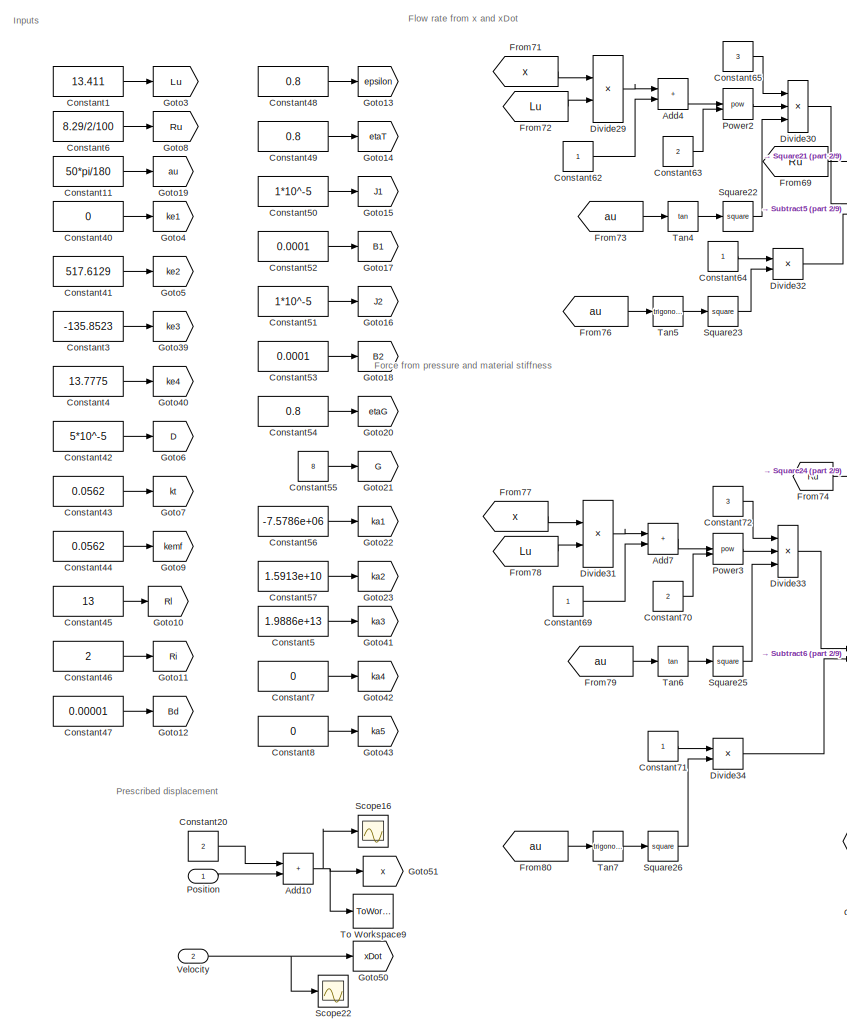
[diagram: root canvas - part 1/9, top left region]
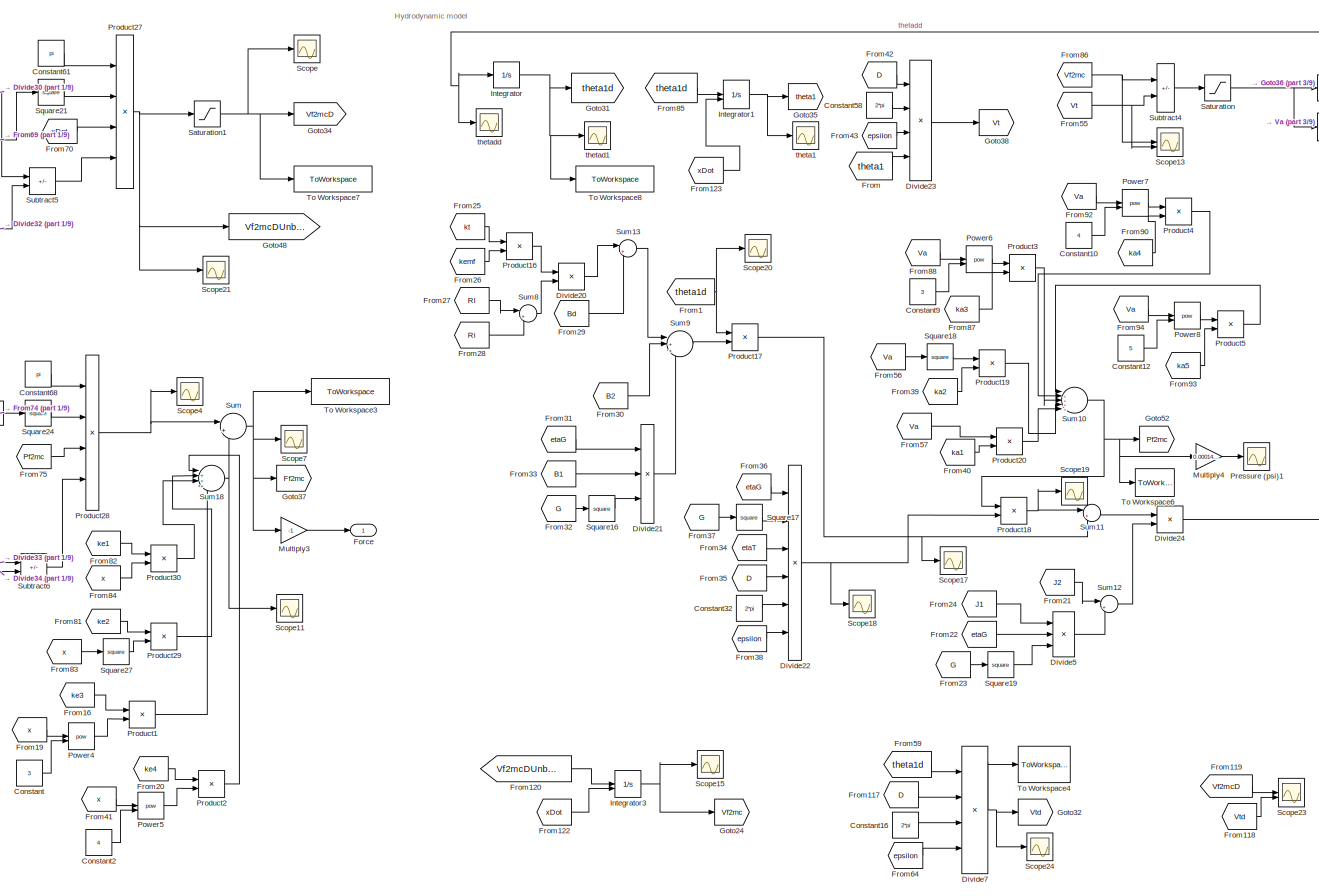
[diagram: root canvas - part 2/9, top center region]
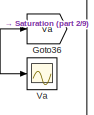
[diagram: root canvas - part 3/9, top right region]
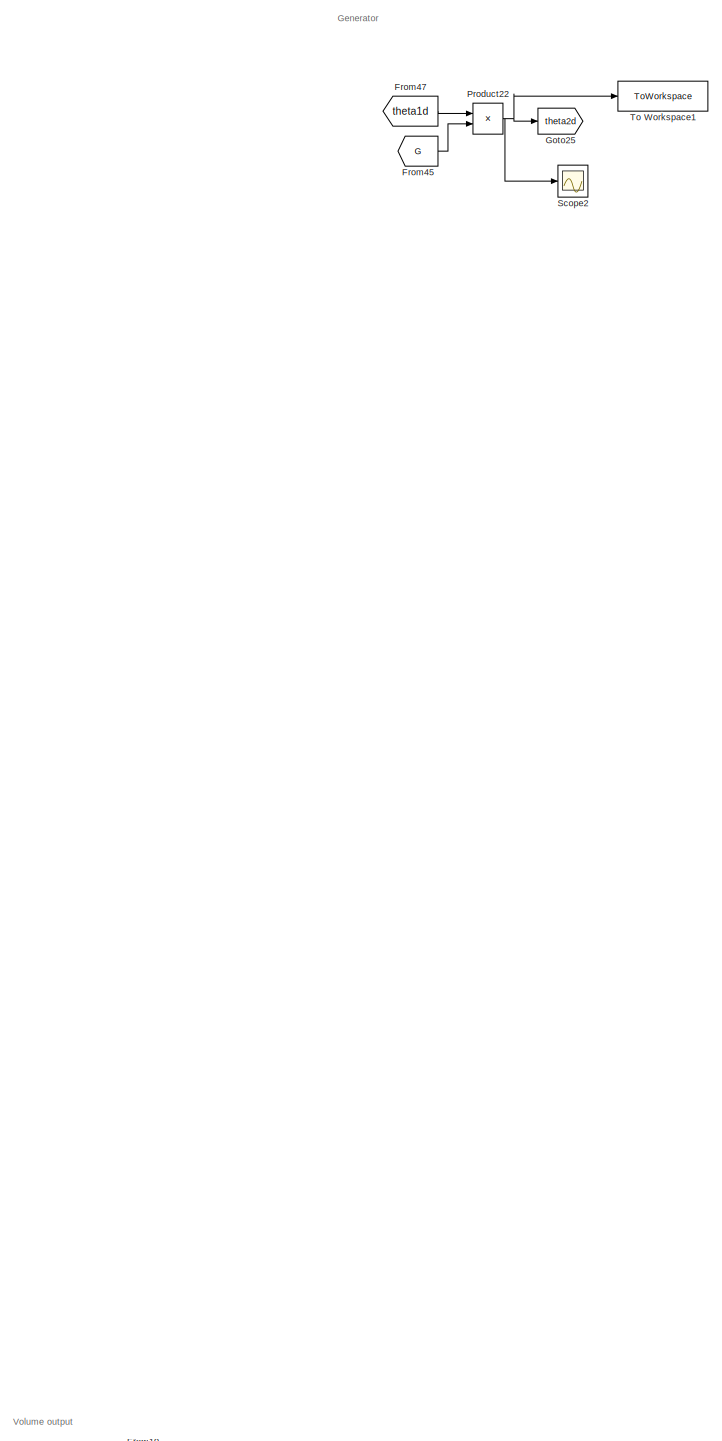
[diagram: root canvas - part 4/9, middle left region]
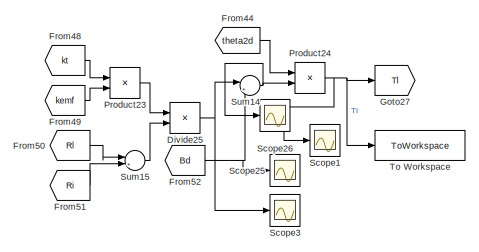
[diagram: root canvas - part 5/9, central region]
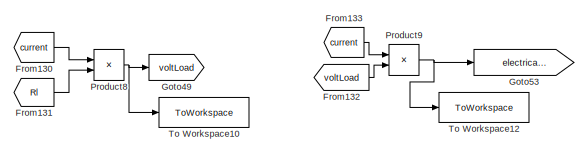
[diagram: root canvas - part 6/9, middle right region]
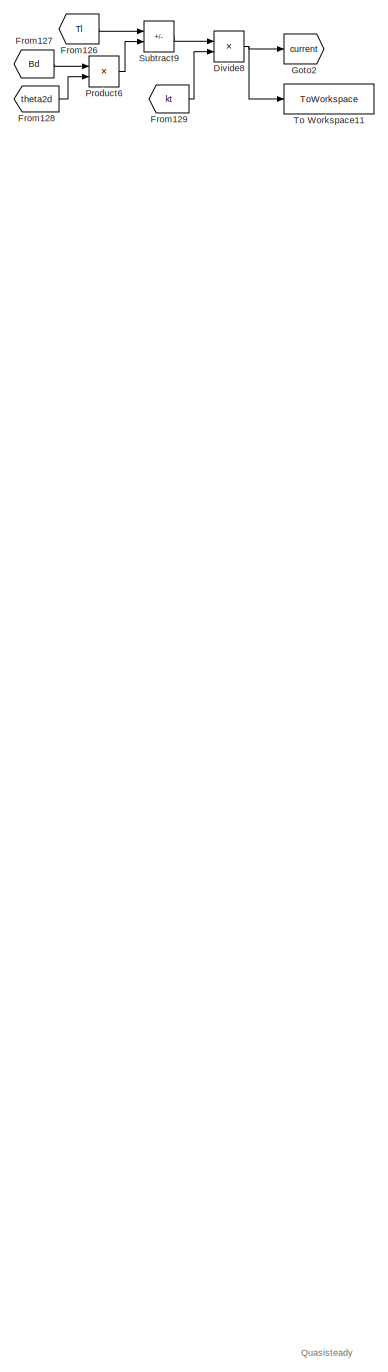
[diagram: root canvas - part 7/9, central region]
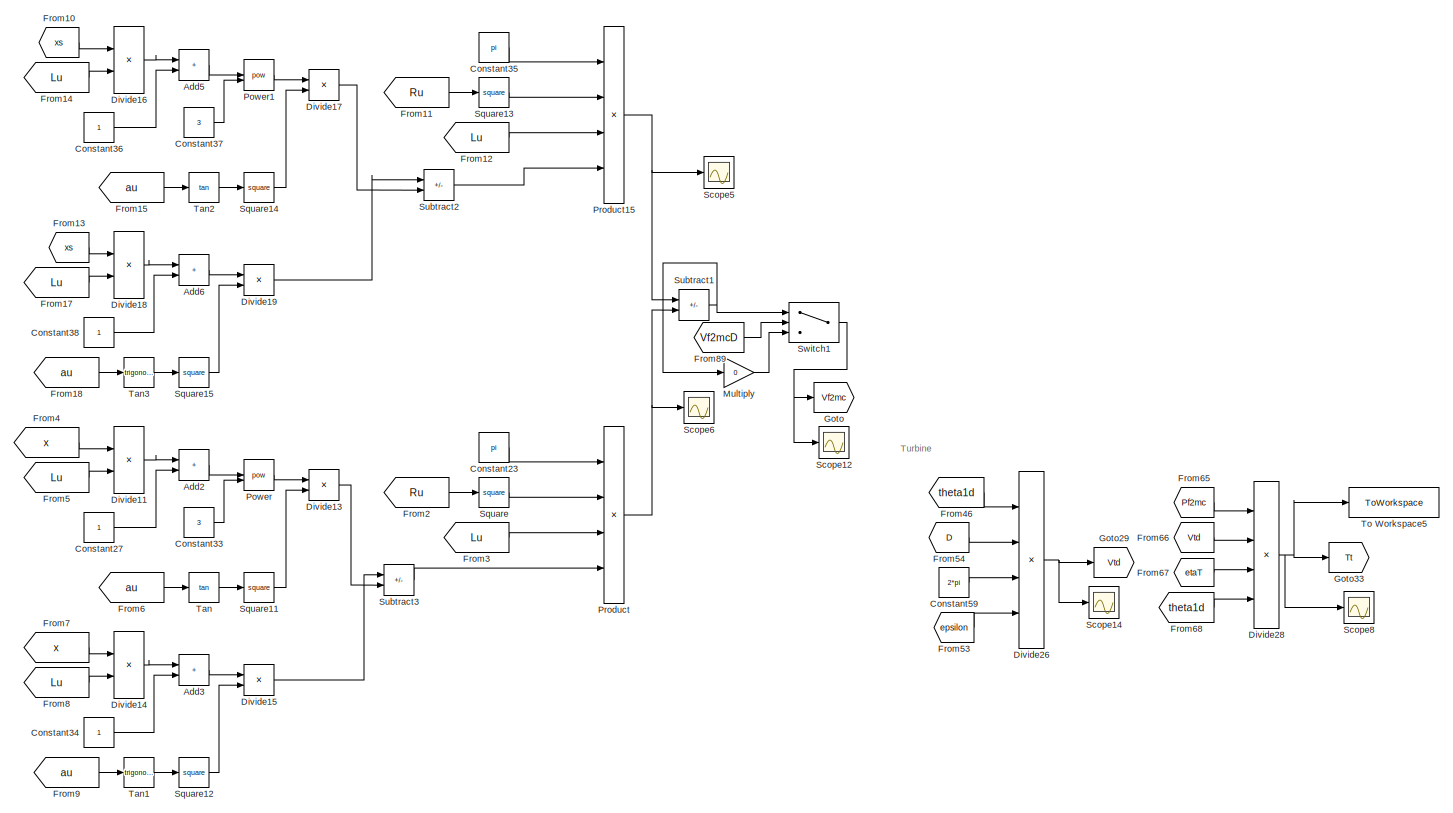
[diagram: root canvas - part 8/9, bottom left region]
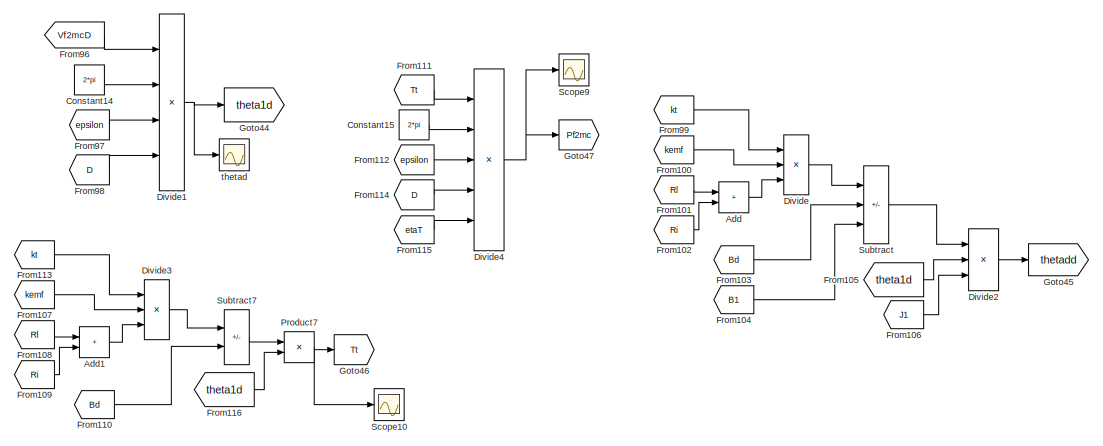
[diagram: root canvas - part 9/9, bottom right region]
MODEL slx_3e424153fed4
KIND model
CONFIG AbsTol = auto
CONFIG EnableMultiTasking = off
CONFIG FixedStep = 0.01
CONFIG MaxStep = auto
CONFIG MinStep = auto
CONFIG RelTol = 1e-3
CONFIG SampleTimeConstraint = Unconstrained
CONFIG SolverName = ode1be
CONFIG StartTime = 0.0
CONFIG StopTime = 300
BLOCK [Sum] Add
  Commented = on
  IconShape = rectangular
BLOCK [Sum] Add1
  Commented = on
  IconShape = rectangular
BLOCK [Sum] Add10
  IconShape = rectangular
BLOCK [Sum] Add2
  Commented = on
  IconShape = rectangular
BLOCK [Sum] Add3
  Commented = on
  IconShape = rectangular
BLOCK [Sum] Add4
  IconShape = rectangular
BLOCK [Sum] Add5
  Commented = on
  IconShape = rectangular
BLOCK [Sum] Add6
  Commented = on
  IconShape = rectangular
BLOCK [Sum] Add7
  IconShape = rectangular
BLOCK [Constant] Constant
  Value = 3
BLOCK [Constant] Constant1
  Value = 13.411
BLOCK [Constant] Constant10
  Value = 4
BLOCK [Constant] Constant11
  Value = 50*pi/180
BLOCK [Constant] Constant12
  Value = 5
BLOCK [Constant] Constant14
  Commented = on
  Value = 2*pi
BLOCK [Constant] Constant15
  Commented = on
  Value = 2*pi
BLOCK [Constant] Constant16
  Value = 2*pi
BLOCK [Constant] Constant2
  Value = 4
BLOCK [Constant] Constant20
  Value = 2
BLOCK [Constant] Constant23
  Commented = on
  Value = pi
BLOCK [Constant] Constant27
  Commented = on
BLOCK [Constant] Constant3
  Value = -135.8523
BLOCK [Constant] Constant32
  Value = 2*pi
BLOCK [Constant] Constant33
  Commented = on
  Value = 3
BLOCK [Constant] Constant34
  Commented = on
BLOCK [Constant] Constant35
  Commented = on
  Value = pi
BLOCK [Constant] Constant36
  Commented = on
BLOCK [Constant] Constant37
  Commented = on
  Value = 3
BLOCK [Constant] Constant38
  Commented = on
BLOCK [Constant] Constant4
  Value = 13.7775
BLOCK [Constant] Constant40
  Value = 0
BLOCK [Constant] Constant41
  Value = 517.6129
BLOCK [Constant] Constant42
  Value = 5*10^-5
BLOCK [Constant] Constant43
  Value = 0.0562
BLOCK [Constant] Constant44
  Value = 0.0562
BLOCK [Constant] Constant45
  Value = 13
BLOCK [Constant] Constant46
  Value = 2
BLOCK [Constant] Constant47
  Value = 0.00001
BLOCK [Constant] Constant48
  Value = 0.8
BLOCK [Constant] Constant49
  Value = 0.8
BLOCK [Constant] Constant5
  Value = 1.9886e+13
BLOCK [Constant] Constant50
  Value = 1*10^-5
BLOCK [Constant] Constant51
  Value = 1*10^-5
BLOCK [Constant] Constant52
  Value = 0.0001
BLOCK [Constant] Constant53
  Value = 0.0001
BLOCK [Constant] Constant54
  Value = 0.8
BLOCK [Constant] Constant55
  Value = 8
BLOCK [Constant] Constant56
  Value = -7.5786e+06
BLOCK [Constant] Constant57
  Value = 1.5913e+10
BLOCK [Constant] Constant58
  Value = 2*pi
BLOCK [Constant] Constant59
  Commented = on
  Value = 2*pi
BLOCK [Constant] Constant6
  Value = 8.29/2/100
BLOCK [Constant] Constant61
  Value = pi
BLOCK [Constant] Constant62
BLOCK [Constant] Constant63
  Value = 2
BLOCK [Constant] Constant64
BLOCK [Constant] Constant65
  Value = 3
BLOCK [Constant] Constant68
  Value = pi
BLOCK [Constant] Constant69
BLOCK [Constant] Constant7
  Value = 0
BLOCK [Constant] Constant70
  Value = 2
BLOCK [Constant] Constant71
BLOCK [Constant] Constant72
  Value = 3
BLOCK [Constant] Constant8
  Value = 0
BLOCK [Constant] Constant9
  Value = 3
BLOCK [Product] Divide
  Commented = on
  Inputs = **/
BLOCK [Product] Divide1
  Commented = on
  Inputs = ***/
BLOCK [Product] Divide11
  Commented = on
  Inputs = */
BLOCK [Product] Divide13
  Commented = on
  Inputs = */
BLOCK [Product] Divide14
  Commented = on
  Inputs = */
BLOCK [Product] Divide15
  Commented = on
  Inputs = */
BLOCK [Product] Divide16
  Commented = on
  Inputs = */
BLOCK [Product] Divide17
  Commented = on
  Inputs = */
BLOCK [Product] Divide18
  Commented = on
  Inputs = */
BLOCK [Product] Divide19
  Commented = on
  Inputs = */
BLOCK [Product] Divide2
  Commented = on
  Inputs = *//
BLOCK [Product] Divide20
  Inputs = */
BLOCK [Product] Divide21
  Inputs = **/
BLOCK [Product] Divide22
  Inputs = */**//
BLOCK [Product] Divide23
  Inputs = *//*
BLOCK [Product] Divide24
  Inputs = */
BLOCK [Product] Divide25
  Inputs = */
BLOCK [Product] Divide26
  Commented = on
  Inputs = **//
BLOCK [Product] Divide28
  Commented = on
  Inputs = ***/
BLOCK [Product] Divide29
  Inputs = */
BLOCK [Product] Divide3
  Commented = on
  Inputs = **/
BLOCK [Product] Divide30
  Inputs = **/
BLOCK [Product] Divide31
  Inputs = */
BLOCK [Product] Divide32
  Inputs = */
BLOCK [Product] Divide33
  Inputs = **/
BLOCK [Product] Divide34
  Inputs = */
BLOCK [Product] Divide4
  Commented = on
  Inputs = ***//
BLOCK [Product] Divide5
  Inputs = **/
BLOCK [Product] Divide7
  Inputs = **//
BLOCK [Product] Divide8
  Inputs = */
BLOCK [Outport] Force
BLOCK [From] From
  GotoTag = theta1
BLOCK [From] From1
  GotoTag = theta1d
BLOCK [From] From10
  Commented = on
  GotoTag = xs
BLOCK [From] From100
  Commented = on
  GotoTag = kemf
BLOCK [From] From101
  Commented = on
  GotoTag = Rl
BLOCK [From] From102
  Commented = on
  GotoTag = Ri
BLOCK [From] From103
  Commented = on
  GotoTag = Bd
BLOCK [From] From104
  Commented = on
  GotoTag = B1
BLOCK [From] From105
  Commented = on
  GotoTag = theta1d
BLOCK [From] From106
  Commented = on
  GotoTag = J1
BLOCK [From] From107
  Commented = on
  GotoTag = kemf
BLOCK [From] From108
  Commented = on
  GotoTag = Rl
BLOCK [From] From109
  Commented = on
  GotoTag = Ri
BLOCK [From] From11
  Commented = on
  GotoTag = Ru
BLOCK [From] From110
  Commented = on
  GotoTag = Bd
BLOCK [From] From111
  Commented = on
  GotoTag = Tt
BLOCK [From] From112
  Commented = on
  GotoTag = epsilon
BLOCK [From] From113
  Commented = on
  GotoTag = kt
BLOCK [From] From114
  Commented = on
  GotoTag = D
BLOCK [From] From115
  Commented = on
  GotoTag = etaT
BLOCK [From] From116
  Commented = on
  GotoTag = theta1d
BLOCK [From] From117
  GotoTag = D
BLOCK [From] From118
  GotoTag = Vtd
BLOCK [From] From119
  GotoTag = Vf2mcD
BLOCK [From] From12
  Commented = on
  GotoTag = Lu
BLOCK [From] From120
  GotoTag = Vf2mcDUnbound
BLOCK [From] From122
  GotoTag = xDot
BLOCK [From] From123
  GotoTag = xDot
BLOCK [From] From126
  GotoTag = Tl
BLOCK [From] From127
  GotoTag = Bd
BLOCK [From] From128
  GotoTag = theta2d
BLOCK [From] From129
  GotoTag = kt
BLOCK [From] From13
  Commented = on
  GotoTag = xs
BLOCK [From] From130
  GotoTag = current
BLOCK [From] From131
  GotoTag = Rl
BLOCK [From] From132
  GotoTag = voltLoad
BLOCK [From] From133
  GotoTag = current
BLOCK [From] From14
  Commented = on
  GotoTag = Lu
BLOCK [From] From15
  Commented = on
  GotoTag = au
BLOCK [From] From16
  GotoTag = ke3
BLOCK [From] From17
  Commented = on
  GotoTag = Lu
BLOCK [From] From18
  Commented = on
  GotoTag = au
BLOCK [From] From19
  GotoTag = x
BLOCK [From] From2
  Commented = on
  GotoTag = Ru
BLOCK [From] From20
  GotoTag = ke4
BLOCK [From] From21
  GotoTag = J2
BLOCK [From] From22
  GotoTag = etaG
BLOCK [From] From23
  GotoTag = G
BLOCK [From] From24
  GotoTag = J1
BLOCK [From] From25
  GotoTag = kt
BLOCK [From] From26
  GotoTag = kemf
BLOCK [From] From27
  GotoTag = Rl
BLOCK [From] From28
  GotoTag = Ri
BLOCK [From] From29
  GotoTag = Bd
BLOCK [From] From3
  Commented = on
  GotoTag = Lu
BLOCK [From] From30
  GotoTag = B2
BLOCK [From] From31
  GotoTag = etaG
BLOCK [From] From32
  GotoTag = G
BLOCK [From] From33
  GotoTag = B1
BLOCK [From] From34
  GotoTag = etaT
BLOCK [From] From35
  GotoTag = D
BLOCK [From] From36
  GotoTag = etaG
BLOCK [From] From37
  GotoTag = G
BLOCK [From] From38
  GotoTag = epsilon
BLOCK [From] From39
  GotoTag = ka2
BLOCK [From] From4
  Commented = on
  GotoTag = x
BLOCK [From] From40
  GotoTag = ka1
BLOCK [From] From41
  GotoTag = x
BLOCK [From] From42
  GotoTag = D
BLOCK [From] From43
  GotoTag = epsilon
BLOCK [From] From44
  GotoTag = theta2d
BLOCK [From] From45
  GotoTag = G
BLOCK [From] From46
  Commented = on
  GotoTag = theta1d
BLOCK [From] From47
  GotoTag = theta1d
BLOCK [From] From48
  GotoTag = kt
BLOCK [From] From49
  GotoTag = kemf
BLOCK [From] From5
  Commented = on
  GotoTag = Lu
BLOCK [From] From50
  GotoTag = Rl
BLOCK [From] From51
  GotoTag = Ri
BLOCK [From] From52
  GotoTag = Bd
BLOCK [From] From53
  Commented = on
  GotoTag = epsilon
BLOCK [From] From54
  Commented = on
  GotoTag = D
BLOCK [From] From55
  GotoTag = Vt
BLOCK [From] From56
  GotoTag = Va
BLOCK [From] From57
  GotoTag = Va
BLOCK [From] From59
  GotoTag = theta1d
BLOCK [From] From6
  Commented = on
  GotoTag = au
BLOCK [From] From64
  GotoTag = epsilon
BLOCK [From] From65
  Commented = on
  GotoTag = Pf2mc
BLOCK [From] From66
  Commented = on
  GotoTag = Vtd
BLOCK [From] From67
  Commented = on
  GotoTag = etaT
BLOCK [From] From68
  Commented = on
  GotoTag = theta1d
BLOCK [From] From69
  GotoTag = Ru
BLOCK [From] From7
  Commented = on
  GotoTag = x
BLOCK [From] From70
  GotoTag = xDot
BLOCK [From] From71
  GotoTag = x
BLOCK [From] From72
  GotoTag = Lu
BLOCK [From] From73
  GotoTag = au
BLOCK [From] From74
  GotoTag = Ru
BLOCK [From] From75
  GotoTag = Pf2mc
BLOCK [From] From76
  GotoTag = au
BLOCK [From] From77
  GotoTag = x
BLOCK [From] From78
  GotoTag = Lu
BLOCK [From] From79
  GotoTag = au
BLOCK [From] From8
  Commented = on
  GotoTag = Lu
BLOCK [From] From80
  GotoTag = au
BLOCK [From] From81
  GotoTag = ke2
BLOCK [From] From82
  GotoTag = ke1
BLOCK [From] From83
  GotoTag = x
BLOCK [From] From84
  GotoTag = x
BLOCK [From] From85
  GotoTag = theta1d
BLOCK [From] From86
  GotoTag = Vf2mc
BLOCK [From] From87
  GotoTag = ka3
BLOCK [From] From88
  GotoTag = Va
BLOCK [From] From89
  Commented = on
  GotoTag = Vf2mcD
BLOCK [From] From9
  Commented = on
  GotoTag = au
BLOCK [From] From90
  GotoTag = ka4
BLOCK [From] From92
  GotoTag = Va
BLOCK [From] From93
  GotoTag = ka5
BLOCK [From] From94
  GotoTag = Va
BLOCK [From] From96
  Commented = on
  GotoTag = Vf2mcD
BLOCK [From] From97
  Commented = on
  GotoTag = epsilon
BLOCK [From] From98
  Commented = on
  GotoTag = D
BLOCK [From] From99
  Commented = on
  GotoTag = kt
BLOCK [Goto] Goto
  Commented = on
  GotoTag = Vf2mc
BLOCK [Goto] Goto10
  GotoTag = Rl
BLOCK [Goto] Goto11
  GotoTag = Ri
BLOCK [Goto] Goto12
  GotoTag = Bd
BLOCK [Goto] Goto13
  GotoTag = epsilon
BLOCK [Goto] Goto14
  GotoTag = etaT
BLOCK [Goto] Goto15
  GotoTag = J1
BLOCK [Goto] Goto16
  GotoTag = J2
BLOCK [Goto] Goto17
  GotoTag = B1
BLOCK [Goto] Goto18
  GotoTag = B2
BLOCK [Goto] Goto19
  GotoTag = au
BLOCK [Goto] Goto2
  GotoTag = current
  NameLocation = left
BLOCK [Goto] Goto20
  GotoTag = etaG
BLOCK [Goto] Goto21
  GotoTag = G
BLOCK [Goto] Goto22
  GotoTag = ka1
BLOCK [Goto] Goto23
  GotoTag = ka2
BLOCK [Goto] Goto24
  GotoTag = Vf2mc
BLOCK [Goto] Goto25
  GotoTag = theta2d
BLOCK [Goto] Goto27
  GotoTag = Tl
BLOCK [Goto] Goto29
  Commented = on
  GotoTag = Vtd
BLOCK [Goto] Goto3
  GotoTag = Lu
BLOCK [Goto] Goto31
  GotoTag = theta1d
BLOCK [Goto] Goto32
  GotoTag = Vtd
BLOCK [Goto] Goto33
  Commented = on
  GotoTag = Tt
BLOCK [Goto] Goto34
  GotoTag = Vf2mcD
BLOCK [Goto] Goto35
  GotoTag = theta1
BLOCK [Goto] Goto36
  GotoTag = Va
BLOCK [Goto] Goto37
  GotoTag = Ff2mc
BLOCK [Goto] Goto38
  GotoTag = Vt
BLOCK [Goto] Goto39
  GotoTag = ke3
BLOCK [Goto] Goto4
  GotoTag = ke1
BLOCK [Goto] Goto40
  GotoTag = ke4
BLOCK [Goto] Goto41
  GotoTag = ka3
BLOCK [Goto] Goto42
  GotoTag = ka4
BLOCK [Goto] Goto43
  GotoTag = ka5
BLOCK [Goto] Goto44
  Commented = on
  GotoTag = theta1d
BLOCK [Goto] Goto45
  Commented = on
  GotoTag = thetadd
BLOCK [Goto] Goto46
  Commented = on
  GotoTag = Tt
BLOCK [Goto] Goto47
  Commented = on
  GotoTag = Pf2mc
BLOCK [Goto] Goto48
  GotoTag = Vf2mcDUnbound
BLOCK [Goto] Goto49
  GotoTag = voltLoad
BLOCK [Goto] Goto5
  GotoTag = ke2
BLOCK [Goto] Goto50
  GotoTag = xDot
BLOCK [Goto] Goto51
  GotoTag = x
BLOCK [Goto] Goto52
  GotoTag = Pf2mc
BLOCK [Goto] Goto53
  GotoTag = electricalPowerOut
BLOCK [Goto] Goto6
  GotoTag = D
BLOCK [Goto] Goto7
  GotoTag = kt
BLOCK [Goto] Goto8
  GotoTag = Ru
  NameLocation = left
BLOCK [Goto] Goto9
  GotoTag = kemf
BLOCK [Integrator] Integrator
  LowerSaturationLimit = 0
BLOCK [Integrator] Integrator1
  ExternalReset = rising
  LowerSaturationLimit = 0
  ShowStatePort = on
BLOCK [Integrator] Integrator3
  ExternalReset = rising
  LimitOutput = on
  LowerSaturationLimit = 0
BLOCK [Gain] Multiply
  Commented = on
  Gain = 0
BLOCK [Gain] Multiply3
  Gain = -1
BLOCK [Gain] Multiply4
  Gain = 0.00014504
BLOCK [Inport] Position
BLOCK [Math] Power
  Commented = on
  Operator = pow
BLOCK [Math] Power1
  Commented = on
  Operator = pow
BLOCK [Math] Power2
  Operator = pow
BLOCK [Math] Power3
  Operator = pow
BLOCK [Math] Power4
  Operator = pow
BLOCK [Math] Power5
  Operator = pow
BLOCK [Math] Power6
  Operator = pow
BLOCK [Math] Power7
  Operator = pow
BLOCK [Math] Power8
  Operator = pow
BLOCK [Scope] Pressure (psi)1
  ActiveDisplayYMaximum = 46.0529725245055
  ActiveDisplayYMinimum = -5.2350685226867055
  DataLoggingVariableName = ScopeData31
  Floating = off
  GraphicalSettings = {"Style":{"BackgroundColor":[0.12941176470588237,0.12941176470588237,0.12941176470588237],"AxesColor":[0.07058823529411765,0.07058823529411765,0.07058823529411765],"LabelsColor":[0.8509803921568627,0.8509803921568627,0.8509803921568627],"PreserveColors":false,"Visible":[true],"LineStyle":["-"],"LineWidth":[1.5],"BarWidth":[0.9],"LineColor":["auto"],"LineFaceAlpha":[1],"LineEdgeAlpha":[1],"Marker":...<+1997ch>
  MultipleDisplayCache = [{"MaxYLimMag":46.0529725245055,"MaxYLimReal":46.0529725245055,"MinYLimMag":0,"MinYLimReal":-5.2350685226867055,"PlotAsMagnitudePhase":false,"ShowGrid":true,"ShowLegend":false,"Title":"%<SignalLabel>","YLabel":""}]
  NumInputPorts = 1
  ScopeFrameLocation = window
  WasSavedAsWebScope = on
  WindowPosition = [2.000000,42.000000,766.000000,794.000000,]
BLOCK [Product] Product
  Commented = on
  Inputs = 4
BLOCK [Product] Product1
BLOCK [Product] Product15
  Commented = on
  Inputs = 4
BLOCK [Product] Product16
BLOCK [Product] Product17
BLOCK [Product] Product18
BLOCK [Product] Product19
BLOCK [Product] Product2
BLOCK [Product] Product20
BLOCK [Product] Product22
BLOCK [Product] Product23
BLOCK [Product] Product24
BLOCK [Product] Product27
  Inputs = 4
BLOCK [Product] Product28
  Inputs = 4
BLOCK [Product] Product29
BLOCK [Product] Product3
BLOCK [Product] Product30
BLOCK [Product] Product4
BLOCK [Product] Product5
BLOCK [Product] Product6
BLOCK [Product] Product7
  Commented = on
BLOCK [Product] Product8
BLOCK [Product] Product9
BLOCK [Saturate] Saturation
  LowerLimit = 0
  UpperLimit = Inf
BLOCK [Saturate] Saturation1
  LowerLimit = 0
  UpperLimit = Inf
BLOCK [Scope] Scope
  ActiveDisplayYMaximum = 0.0026769647130902669
  ActiveDisplayYMinimum = -0.0002974405236766963
  DataLoggingVariableName = ScopeData9
  Floating = off
  GraphicalSettings = {"AxesScalingProperties":{"AlignXAxis":"Center","AlignYAxis":"Center","AutoScaleXAxisLimits":false,"AxesScaling":"Manual","AxesScalingNumUpdates":10,"ExpandOnly":true,"ScaleAxesLimitsAtStop":false,"XAxisDataRange":100,"YAxisDataRange":80},"DisplayProperties":{"ColorOrder":["auto","auto","auto","auto","auto","auto","auto","auto","auto","auto","auto","auto","auto","auto","auto","auto","auto","auto",...<+2036ch>
  MultipleDisplayCache = [{"MaxYLimMag":0.0026769647130902669,"MaxYLimReal":0.0026769647130902669,"MinYLimMag":0,"MinYLimReal":-0.0002974405236766963,"PlotAsMagnitudePhase":false,"ShowGrid":true,"ShowLegend":false,"Title":"%<SignalLabel>","YLabel":""}]
  NumInputPorts = 1
  ScopeFrameLocation = window
  WasSavedAsWebScope = on
  WindowPosition = [770.000000,42.000000,766.000000,794.000000,]
BLOCK [Scope] Scope1
  ActiveDisplayYMaximum = 1
  ActiveDisplayYMinimum = -1
  DataLoggingVariableName = ScopeData1
  Floating = off
  GraphicalSettings = {"Style":{"BackgroundColor":[0.12941176470588237,0.12941176470588237,0.12941176470588237],"AxesColor":[0.07058823529411765,0.07058823529411765,0.07058823529411765],"LabelsColor":[0.8509803921568627,0.8509803921568627,0.8509803921568627],"PreserveColors":false,"Visible":[true],"LineStyle":["-"],"LineWidth":[1.5],"BarWidth":[0.9],"LineColor":["auto"],"LineFaceAlpha":[1],"LineEdgeAlpha":[1],"Marker":...<+1888ch>
  MultipleDisplayCache = [{"MaxYLimMag":1,"MaxYLimReal":1,"MinYLimMag":0,"MinYLimReal":-1,"PlotAsMagnitudePhase":false,"ShowGrid":true,"ShowLegend":false,"Title":"%<SignalLabel>","YLabel":""}]
  NumInputPorts = 1
  ScopeFrameLocation = window
  WasSavedAsWebScope = on
  WindowPosition = [920.000000,357.000000,560.000000,420.000000,]
BLOCK [Scope] Scope10
  ActiveDisplayYMaximum = 1
  ActiveDisplayYMinimum = -1
  Commented = on
  DataLoggingVariableName = ScopeData20
  Floating = off
  GraphicalSettings = {"Style":{"BackgroundColor":[0.12941176470588237,0.12941176470588237,0.12941176470588237],"AxesColor":[0.07058823529411765,0.07058823529411765,0.07058823529411765],"LabelsColor":[0.8509803921568627,0.8509803921568627,0.8509803921568627],"PreserveColors":false,"Visible":[true],"LineStyle":["-"],"LineWidth":[1.5],"BarWidth":[0.9],"LineColor":["auto"],"LineFaceAlpha":[1],"LineEdgeAlpha":[1],"Marker":...<+2012ch>
  MultipleDisplayCache = [{"MaxYLimMag":1,"MaxYLimReal":1,"MinYLimMag":0,"MinYLimReal":-1,"PlotAsMagnitudePhase":false,"ShowGrid":true,"ShowLegend":false,"Title":"%<SignalLabel>","YLabel":""}]
  NumInputPorts = 1
  ScopeFrameLocation = window
  WasSavedAsWebScope = on
  WindowPosition = [488.000000,222.000000,560.000000,420.000000,]
BLOCK [Scope] Scope11
  ActiveDisplayYMaximum = 1
  ActiveDisplayYMinimum = -1
  DataLoggingVariableName = ScopeData22
  Floating = off
  GraphicalSettings = {"Style":{"BackgroundColor":[0.12941176470588237,0.12941176470588237,0.12941176470588237],"AxesColor":[0.07058823529411765,0.07058823529411765,0.07058823529411765],"LabelsColor":[0.8509803921568627,0.8509803921568627,0.8509803921568627],"PreserveColors":false,"Visible":[true],"LineStyle":["-"],"LineWidth":[1.5],"BarWidth":[0.9],"LineColor":["auto"],"LineFaceAlpha":[1],"LineEdgeAlpha":[1],"Marker":...<+1892ch>
  MultipleDisplayCache = [{"MaxYLimMag":1,"MaxYLimReal":1,"MinYLimMag":0,"MinYLimReal":-1,"PlotAsMagnitudePhase":false,"ShowGrid":true,"ShowLegend":false,"Title":"%<SignalLabel>","YLabel":""}]
  NumInputPorts = 1
  ScopeFrameLocation = window
  WasSavedAsWebScope = on
  WindowPosition = [1.000000,41.000000,1536.000000,802.000000,]
BLOCK [Scope] Scope12
  ActiveDisplayYMaximum = 0.0084678461837937417
  ActiveDisplayYMinimum = -0.00094087179819930442
  Commented = on
  DataLoggingVariableName = ScopeData2
  Floating = off
  GraphicalSettings = {"Style":{"BackgroundColor":[0.12941176470588237,0.12941176470588237,0.12941176470588237],"AxesColor":[0.07058823529411765,0.07058823529411765,0.07058823529411765],"LabelsColor":[0.8509803921568627,0.8509803921568627,0.8509803921568627],"PreserveColors":false,"Visible":[true],"LineStyle":["-"],"LineWidth":[1.5],"BarWidth":[0.9],"LineColor":["auto"],"LineFaceAlpha":[1],"LineEdgeAlpha":[1],"Marker":...<+2014ch>
  MultipleDisplayCache = [{"MaxYLimMag":0.0084678461837937417,"MaxYLimReal":0.0084678461837937417,"MinYLimMag":0,"MinYLimReal":-0.00094087179819930442,"PlotAsMagnitudePhase":false,"ShowGrid":true,"ShowLegend":false,"Title":"%<SignalLabel>","YLabel":""}]
  NumInputPorts = 1
  ScopeFrameLocation = window
  WasSavedAsWebScope = on
  WindowPosition = [193.000000,194.000000,560.000000,420.000000,]
BLOCK [Scope] Scope13
  ActiveDisplayYMaximum = 0.0066297811698070768
  ActiveDisplayYMinimum = -0.00074417995156260907
  DataLoggingVariableName = ScopeData7
  Floating = off
  GraphicalSettings = {"Style":{"BackgroundColor":[0.12941176470588237,0.12941176470588237,0.12941176470588237],"AxesColor":[0.07058823529411765,0.07058823529411765,0.07058823529411765],"LabelsColor":[0.8509803921568627,0.8509803921568627,0.8509803921568627],"PreserveColors":false,"Visible":[true,true],"LineStyle":["-","-"],"LineWidth":[1.5,1.5],"BarWidth":[0.9,0.9],"LineColor":["auto","auto"],"LineFaceAlpha":[1,1],"Li...<+2437ch>
  MultipleDisplayCache = [{"MaxYLimMag":0.0066297811698070768,"MaxYLimReal":0.0066297811698070768,"MinYLimMag":0,"MinYLimReal":-0.00074417995156260907,"PlotAsMagnitudePhase":false,"ShowGrid":true,"ShowLegend":false,"Title":"%<SignalLabel>","YLabel":""}]
  NumInputPorts = 2
  ScopeFrameLocation = window
  WasSavedAsWebScope = on
  WindowPosition = [770.000000,42.000000,766.000000,794.000000,]
BLOCK [Scope] Scope14
  ActiveDisplayYMaximum = 4E-5
  ActiveDisplayYMinimum = -4.3E-5
  Commented = on
  DataLoggingVariableName = ScopeData4
  Floating = off
  GraphicalSettings = {"GraphicalSettings":{"LegacySettings":true,"Style":{"AxesScalingProperties":{"ScaleAxesLimitsAtStop":false},"Style":{"AxesColor":"[0 0 0]","ChannelNames":[""],"ColorOrder":"[1 1 0.0666666666666667;0.0745098039215686 0.623529411764706 1;1 0.411764705882353 0.16078431372549;0.392156862745098 0.831372549019608 0.0745098039215686;0.717647058823529 0.274509803921569 1;0.0588235294117647 1 1;1 0.074509...<+399ch>
  MultipleDisplayCache = [{"MaxYLimMag":4.3E-5,"MaxYLimReal":4E-5,"MinYLimMag":0,"MinYLimReal":-4.3E-5,"PlotAsMagnitudePhase":false,"ShowGrid":true,"ShowLegend":false,"Title":"%<SignalLabel>","YLabel":""}]
  NumInputPorts = 1
  WasSavedAsWebScope = on
  WindowPosition = [344.2 257.8 560 420]
BLOCK [Scope] Scope15
  ActiveDisplayYMaximum = 0.006770628497362245
  ActiveDisplayYMinimum = -0.0019537552640037036
  DataLoggingVariableName = ScopeData23
  Floating = off
  GraphicalSettings = {"Style":{"BackgroundColor":[0.12941176470588237,0.12941176470588237,0.12941176470588237],"AxesColor":[0.07058823529411765,0.07058823529411765,0.07058823529411765],"LabelsColor":[0.8509803921568627,0.8509803921568627,0.8509803921568627],"PreserveColors":false,"Visible":[true],"LineStyle":["-"],"LineWidth":[1.5],"BarWidth":[0.9],"LineColor":["auto"],"LineFaceAlpha":[1],"LineEdgeAlpha":[1],"Marker":...<+2021ch>
  MultipleDisplayCache = [{"MaxYLimMag":0.006770628497362245,"MaxYLimReal":0.006770628497362245,"MinYLimMag":0,"MinYLimReal":-0.0019537552640037036,"PlotAsMagnitudePhase":false,"ShowGrid":true,"ShowLegend":false,"Title":"%<SignalLabel>","YLabel":""}]
  NumInputPorts = 1
  ScopeFrameLocation = window
  WasSavedAsWebScope = on
  WindowPosition = [2.000000,42.000000,766.000000,794.000000,]
BLOCK [Scope] Scope16
  ActiveDisplayYMaximum = 32.802699799920319
  ActiveDisplayYMinimum = -252.26449603163294
  DataLoggingVariableName = ScopeData16
  Floating = off
  GraphicalSettings = {"Style":{"BackgroundColor":[0.12941176470588237,0.12941176470588237,0.12941176470588237],"AxesColor":[0.07058823529411765,0.07058823529411765,0.07058823529411765],"LabelsColor":[0.8509803921568627,0.8509803921568627,0.8509803921568627],"PreserveColors":false,"Visible":[true],"LineStyle":["-"],"LineWidth":[1.5],"BarWidth":[0.9],"LineColor":["auto"],"LineFaceAlpha":[1],"LineEdgeAlpha":[1],"Marker":...<+1995ch>
  MultipleDisplayCache = [{"MaxYLimMag":252.26449603163294,"MaxYLimReal":32.802699799920319,"MinYLimMag":0,"MinYLimReal":-252.26449603163294,"PlotAsMagnitudePhase":false,"ShowGrid":true,"ShowLegend":false,"Title":"%<SignalLabel>","YLabel":""}]
  NumInputPorts = 1
  ScopeFrameLocation = window
  WasSavedAsWebScope = on
  WindowPosition = [2.000000,42.000000,766.000000,794.000000,]
BLOCK [Scope] Scope17
  ActiveDisplayYMaximum = 0.011251572321143424
  ActiveDisplayYMinimum = -0.0012501747023492692
  DataLoggingVariableName = ScopeData24
  Floating = off
  GraphicalSettings = {"Style":{"BackgroundColor":[0.12941176470588237,0.12941176470588237,0.12941176470588237],"AxesColor":[0.07058823529411765,0.07058823529411765,0.07058823529411765],"LabelsColor":[0.8509803921568627,0.8509803921568627,0.8509803921568627],"PreserveColors":false,"Visible":[true],"LineStyle":["-"],"LineWidth":[1.5],"BarWidth":[0.9],"LineColor":["auto"],"LineFaceAlpha":[1],"LineEdgeAlpha":[1],"Marker":...<+2017ch>
  MultipleDisplayCache = [{"MaxYLimMag":0.011251572321143424,"MaxYLimReal":0.011251572321143424,"MinYLimMag":0,"MinYLimReal":-0.0012501747023492692,"PlotAsMagnitudePhase":false,"ShowGrid":true,"ShowLegend":false,"Title":"%<SignalLabel>","YLabel":""}]
  NumInputPorts = 1
  ScopeFrameLocation = window
  WasSavedAsWebScope = on
  WindowPosition = [2.000000,42.000000,1534.000000,794.000000,]
BLOCK [Scope] Scope18
  ActiveDisplayYMaximum = 1.0947183943243461E-7
  ActiveDisplayYMinimum = 8.9471839432434613E-8
  DataLoggingVariableName = ScopeData25
  Floating = off
  GraphicalSettings = {"Style":{"BackgroundColor":[0.12941176470588237,0.12941176470588237,0.12941176470588237],"AxesColor":[0.07058823529411765,0.07058823529411765,0.07058823529411765],"LabelsColor":[0.8509803921568627,0.8509803921568627,0.8509803921568627],"PreserveColors":false,"Visible":[true],"LineStyle":["-"],"LineWidth":[1.5],"BarWidth":[0.9],"LineColor":["auto"],"LineFaceAlpha":[1],"LineEdgeAlpha":[1],"Marker":...<+1901ch>
  MultipleDisplayCache = [{"MaxYLimMag":1.0947183943243461E-7,"MaxYLimReal":1.0947183943243461E-7,"MinYLimMag":8.9471839432434613E-8,"MinYLimReal":8.9471839432434613E-8,"PlotAsMagnitudePhase":false,"ShowGrid":true,"ShowLegend":false,"Title":"%<SignalLabel>","YLabel":""}]
  NumInputPorts = 1
  ScopeFrameLocation = window
  WasSavedAsWebScope = on
  WindowPosition = [545.000000,213.000000,560.000000,420.000000,]
BLOCK [Scope] Scope19
  ActiveDisplayYMaximum = 1
  ActiveDisplayYMinimum = -1
  DataLoggingVariableName = ScopeData26
  Floating = off
  GraphicalSettings = {"Style":{"BackgroundColor":[0.12941176470588237,0.12941176470588237,0.12941176470588237],"AxesColor":[0.07058823529411765,0.07058823529411765,0.07058823529411765],"LabelsColor":[0.8509803921568627,0.8509803921568627,0.8509803921568627],"PreserveColors":false,"Visible":[true],"LineStyle":["-"],"LineWidth":[1.5],"BarWidth":[0.9],"LineColor":["auto"],"LineFaceAlpha":[1],"LineEdgeAlpha":[1],"Marker":...<+1900ch>
  MultipleDisplayCache = [{"MaxYLimMag":1,"MaxYLimReal":1,"MinYLimMag":0,"MinYLimReal":-1,"PlotAsMagnitudePhase":false,"ShowGrid":true,"ShowLegend":false,"Title":"%<SignalLabel>","YLabel":""}]
  NumInputPorts = 1
  ScopeFrameLocation = window
  WasSavedAsWebScope = on
  WindowPosition = [8.000000,48.000000,1522.000000,788.000000,]
BLOCK [Scope] Scope2
  ActiveDisplayYMaximum = 1
  ActiveDisplayYMinimum = -1
  DataLoggingVariableName = ScopeData2
  Floating = off
  GraphicalSettings = {"Style":{"BackgroundColor":[0.12941176470588237,0.12941176470588237,0.12941176470588237],"AxesColor":[0.07058823529411765,0.07058823529411765,0.07058823529411765],"LabelsColor":[0.8509803921568627,0.8509803921568627,0.8509803921568627],"PreserveColors":false,"Visible":[true],"LineStyle":["-"],"LineWidth":[1.5],"BarWidth":[0.9],"LineColor":["auto"],"LineFaceAlpha":[1],"LineEdgeAlpha":[1],"Marker":...<+1950ch>
  MultipleDisplayCache = [{"MaxYLimMag":1,"MaxYLimReal":1,"MinYLimMag":0,"MinYLimReal":-1,"PlotAsMagnitudePhase":false,"ShowGrid":true,"ShowLegend":false,"Title":"%<SignalLabel>","YLabel":""}]
  NumInputPorts = 1
  ScopeFrameLocation = window
  WasSavedAsWebScope = on
  WindowPosition = [801.000000,285.000000,560.000000,420.000000,]
BLOCK [Scope] Scope20
  ActiveDisplayYMaximum = 1
  ActiveDisplayYMinimum = -1
  DataLoggingVariableName = ScopeData27
  Floating = off
  GraphicalSettings = {"Style":{"BackgroundColor":[0.12941176470588237,0.12941176470588237,0.12941176470588237],"AxesColor":[0.07058823529411765,0.07058823529411765,0.07058823529411765],"LabelsColor":[0.8509803921568627,0.8509803921568627,0.8509803921568627],"PreserveColors":false,"Visible":[true],"LineStyle":["-"],"LineWidth":[1.5],"BarWidth":[0.9],"LineColor":["auto"],"LineFaceAlpha":[1],"LineEdgeAlpha":[1],"Marker":...<+1902ch>
  MultipleDisplayCache = [{"MaxYLimMag":1,"MaxYLimReal":1,"MinYLimMag":0,"MinYLimReal":-1,"PlotAsMagnitudePhase":false,"ShowGrid":true,"ShowLegend":false,"Title":"%<SignalLabel>","YLabel":""}]
  NumInputPorts = 1
  ScopeFrameLocation = window
  WasSavedAsWebScope = on
  WindowPosition = [2.000000,42.000000,1534.000000,794.000000,]
BLOCK [Scope] Scope21
  ActiveDisplayYMaximum = 0.0029742913341183983
  ActiveDisplayYMinimum = -0.0029716343329251682
  DataLoggingVariableName = ScopeData28
  Floating = off
  GraphicalSettings = {"AxesScalingProperties":{"AlignXAxis":"Center","AlignYAxis":"Center","AutoScaleXAxisLimits":false,"AxesScaling":"Manual","AxesScalingNumUpdates":10,"ExpandOnly":true,"ScaleAxesLimitsAtStop":false,"XAxisDataRange":100,"YAxisDataRange":80},"DisplayProperties":{"ColorOrder":["auto","auto","auto","auto","auto","auto","auto","auto","auto","auto","auto","auto","auto","auto","auto","auto","auto","auto",...<+2026ch>
  MultipleDisplayCache = [{"MaxYLimMag":0.0029742913341183983,"MaxYLimReal":0.0029742913341183983,"MinYLimMag":0,"MinYLimReal":-0.0029716343329251682,"PlotAsMagnitudePhase":false,"ShowGrid":true,"ShowLegend":false,"Title":"%<SignalLabel>","YLabel":""}]
  NumInputPorts = 1
  ScopeFrameLocation = window
  WasSavedAsWebScope = on
  WindowPosition = [770.000000,42.000000,766.000000,794.000000,]
BLOCK [Scope] Scope22
  ActiveDisplayYMaximum = 357.87833617632754
  ActiveDisplayYMinimum = -49.848081295924871
  DataLoggingVariableName = ScopeData29
  Floating = off
  GraphicalSettings = {"Style":{"BackgroundColor":[0.12941176470588237,0.12941176470588237,0.12941176470588237],"AxesColor":[0.07058823529411765,0.07058823529411765,0.07058823529411765],"LabelsColor":[0.8509803921568627,0.8509803921568627,0.8509803921568627],"PreserveColors":false,"Visible":[true],"LineStyle":["-"],"LineWidth":[1.5],"BarWidth":[0.9],"LineColor":["auto"],"LineFaceAlpha":[1],"LineEdgeAlpha":[1],"Marker":...<+1999ch>
  MultipleDisplayCache = [{"MaxYLimMag":357.87833617632754,"MaxYLimReal":357.87833617632754,"MinYLimMag":0,"MinYLimReal":-49.848081295924871,"PlotAsMagnitudePhase":false,"ShowGrid":true,"ShowLegend":false,"Title":"%<SignalLabel>","YLabel":""}]
  NumInputPorts = 1
  ScopeFrameLocation = window
  WasSavedAsWebScope = on
  WindowPosition = [1.000000,41.000000,1536.000000,802.000000,]
BLOCK [Scope] Scope23
  ActiveDisplayYMaximum = 0.0016047077017932374
  ActiveDisplayYMinimum = -0.00060463454147285521
  DataLoggingVariableName = ScopeData10
  Floating = off
  GraphicalSettings = {"Style":{"BackgroundColor":[0.12941176470588237,0.12941176470588237,0.12941176470588237],"AxesColor":[0.07058823529411765,0.07058823529411765,0.07058823529411765],"LabelsColor":[0.8509803921568627,0.8509803921568627,0.8509803921568627],"PreserveColors":false,"Visible":[true,true],"LineStyle":["-","-"],"LineWidth":[1.5,1.5],"BarWidth":[0.9,0.9],"LineColor":["auto","auto"],"LineFaceAlpha":[1,1],"Li...<+2138ch>
  MultipleDisplayCache = [{"MaxYLimMag":0.002115302392272019,"MaxYLimReal":0.0016047077017932374,"MinYLimMag":0,"MinYLimReal":-0.00060463454147285521,"PlotAsMagnitudePhase":false,"ShowGrid":true,"ShowLegend":false,"Title":"%<SignalLabel>","YLabel":""}]
  NumInputPorts = 2
  ScopeFrameLocation = window
  WasSavedAsWebScope = on
  WindowPosition = [2.000000,42.000000,766.000000,794.000000,]
BLOCK [Scope] Scope24
  ActiveDisplayYMaximum = 0.0026796240550879518
  ActiveDisplayYMinimum = -0.00029773600612088347
  DataLoggingVariableName = ScopeData8
  Floating = off
  GraphicalSettings = {"Style":{"BackgroundColor":[0.12941176470588237,0.12941176470588237,0.12941176470588237],"AxesColor":[0.07058823529411765,0.07058823529411765,0.07058823529411765],"LabelsColor":[0.8509803921568627,0.8509803921568627,0.8509803921568627],"PreserveColors":false,"Visible":[true],"LineStyle":["-"],"LineWidth":[1.5],"BarWidth":[0.9],"LineColor":["auto"],"LineFaceAlpha":[1],"LineEdgeAlpha":[1],"Marker":...<+2015ch>
  MultipleDisplayCache = [{"MaxYLimMag":0.0026796240550879518,"MaxYLimReal":0.0026796240550879518,"MinYLimMag":0,"MinYLimReal":-0.00029773600612088347,"PlotAsMagnitudePhase":false,"ShowGrid":true,"ShowLegend":false,"Title":"%<SignalLabel>","YLabel":""}]
  NumInputPorts = 1
  ScopeFrameLocation = window
  WasSavedAsWebScope = on
  WindowPosition = [2.000000,42.000000,766.000000,794.000000,]
BLOCK [Scope] Scope25
  ActiveDisplayYMaximum = 1
  ActiveDisplayYMinimum = -1
  DataLoggingVariableName = ScopeData18
  Floating = off
  GraphicalSettings = {"Style":{"BackgroundColor":[0.12941176470588237,0.12941176470588237,0.12941176470588237],"AxesColor":[0.07058823529411765,0.07058823529411765,0.07058823529411765],"LabelsColor":[0.8509803921568627,0.8509803921568627,0.8509803921568627],"PreserveColors":false,"Visible":[true],"LineStyle":["-"],"LineWidth":[1.5],"BarWidth":[0.9],"LineColor":["auto"],"LineFaceAlpha":[1],"LineEdgeAlpha":[1],"Marker":...<+1899ch>
  MultipleDisplayCache = [{"MaxYLimMag":1,"MaxYLimReal":1,"MinYLimMag":0,"MinYLimReal":-1,"PlotAsMagnitudePhase":false,"ShowGrid":true,"ShowLegend":false,"Title":"%<SignalLabel>","YLabel":""}]
  NumInputPorts = 1
  ScopeFrameLocation = window
  WasSavedAsWebScope = on
  WindowPosition = [770.000000,42.000000,766.000000,794.000000,]
BLOCK [Scope] Scope26
  ActiveDisplayYMaximum = 1
  ActiveDisplayYMinimum = -1
  DataLoggingVariableName = ScopeData30
  Floating = off
  GraphicalSettings = {"Style":{"BackgroundColor":[0.12941176470588237,0.12941176470588237,0.12941176470588237],"AxesColor":[0.07058823529411765,0.07058823529411765,0.07058823529411765],"LabelsColor":[0.8509803921568627,0.8509803921568627,0.8509803921568627],"PreserveColors":false,"Visible":[true],"LineStyle":["-"],"LineWidth":[1.5],"BarWidth":[0.9],"LineColor":["auto"],"LineFaceAlpha":[1],"LineEdgeAlpha":[1],"Marker":...<+1895ch>
  MultipleDisplayCache = [{"MaxYLimMag":1,"MaxYLimReal":1,"MinYLimMag":0,"MinYLimReal":-1,"PlotAsMagnitudePhase":false,"ShowGrid":true,"ShowLegend":false,"Title":"%<SignalLabel>","YLabel":""}]
  NumInputPorts = 1
  ScopeFrameLocation = window
  WasSavedAsWebScope = on
  WindowPosition = [75.000000,272.000000,560.000000,420.000000,]
BLOCK [Scope] Scope3
  ActiveDisplayYMaximum = 1
  ActiveDisplayYMinimum = -1
  DataLoggingVariableName = ScopeData15
  Floating = off
  GraphicalSettings = {"Style":{"BackgroundColor":[0.12941176470588237,0.12941176470588237,0.12941176470588237],"AxesColor":[0.07058823529411765,0.07058823529411765,0.07058823529411765],"LabelsColor":[0.8509803921568627,0.8509803921568627,0.8509803921568627],"PreserveColors":false,"Visible":[true],"LineStyle":["-"],"LineWidth":[1.5],"BarWidth":[0.9],"LineColor":["auto"],"LineFaceAlpha":[1],"LineEdgeAlpha":[1],"Marker":...<+1895ch>
  MultipleDisplayCache = [{"MaxYLimMag":1,"MaxYLimReal":1,"MinYLimMag":0,"MinYLimReal":-1,"PlotAsMagnitudePhase":false,"ShowGrid":true,"ShowLegend":false,"Title":"%<SignalLabel>","YLabel":""}]
  NumInputPorts = 1
  ScopeFrameLocation = window
  WasSavedAsWebScope = on
  WindowPosition = [2.000000,42.000000,766.000000,794.000000,]
BLOCK [Scope] Scope4
  ActiveDisplayYMaximum = 88.529054620997954
  ActiveDisplayYMinimum = -9.8365616245553262
  DataLoggingVariableName = ScopeData21
  Floating = off
  GraphicalSettings = {"Style":{"BackgroundColor":[0.12941176470588237,0.12941176470588237,0.12941176470588237],"AxesColor":[0.07058823529411765,0.07058823529411765,0.07058823529411765],"LabelsColor":[0.8509803921568627,0.8509803921568627,0.8509803921568627],"PreserveColors":false,"Visible":[true],"LineStyle":["-"],"LineWidth":[1.5],"BarWidth":[0.9],"LineColor":["auto"],"LineFaceAlpha":[1],"LineEdgeAlpha":[1],"Marker":...<+2015ch>
  MultipleDisplayCache = [{"MaxYLimMag":88.529054620997954,"MaxYLimReal":88.529054620997954,"MinYLimMag":0,"MinYLimReal":-9.8365616245553262,"PlotAsMagnitudePhase":false,"ShowGrid":true,"ShowLegend":false,"Title":"%<SignalLabel>","YLabel":""}]
  NumInputPorts = 1
  ScopeFrameLocation = window
  WasSavedAsWebScope = on
  WindowPosition = [1.000000,41.000000,1536.000000,802.000000,]
BLOCK [Scope] Scope5
  ActiveDisplayYMaximum = 0.09038
  ActiveDisplayYMinimum = 0.07038
  Commented = on
  DataLoggingVariableName = ScopeData5
  Floating = off
  GraphicalSettings = {"GraphicalSettings":{"LegacySettings":true,"Style":{"Style":{"AxesColor":"[0 0 0]","ChannelNames":[""],"ColorOrder":"[1 1 0.0666666666666667;0.0745098039215686 0.623529411764706 1;1 0.411764705882353 0.16078431372549;0.392156862745098 0.831372549019608 0.0745098039215686;0.717647058823529 0.274509803921569 1;0.0588235294117647 1 1;1 0.0745098039215686 0.650980392156863]","CurrentConfiguration":"e...<+357ch>
  MultipleDisplayCache = [{"MaxYLimMag":0.09038,"MaxYLimReal":0.09038,"MinYLimMag":0.07038,"MinYLimReal":0.07038,"PlotAsMagnitudePhase":false,"ShowGrid":true,"ShowLegend":false,"Title":"%<SignalLabel>","YLabel":""}]
  NumInputPorts = 1
  WasSavedAsWebScope = on
  WindowPosition = [807.8 349.8 560 420]
BLOCK [Scope] Scope6
  ActiveDisplayYMaximum = 0.08132
  ActiveDisplayYMinimum = 0.07191
  Commented = on
  DataLoggingVariableName = ScopeData6
  Floating = off
  GraphicalSettings = {"GraphicalSettings":{"LegacySettings":true,"Style":{"Style":{"AxesColor":"[0 0 0]","ChannelNames":[""],"ColorOrder":"[1 1 0.0666666666666667;0.0745098039215686 0.623529411764706 1;1 0.411764705882353 0.16078431372549;0.392156862745098 0.831372549019608 0.0745098039215686;0.717647058823529 0.274509803921569 1;0.0588235294117647 1 1;1 0.0745098039215686 0.650980392156863]","CurrentConfiguration":"e...<+343ch>
  MultipleDisplayCache = [{"MaxYLimMag":0.08132,"MaxYLimReal":0.08132,"MinYLimMag":0.07191,"MinYLimReal":0.07191,"PlotAsMagnitudePhase":false,"ShowGrid":true,"ShowLegend":false,"Title":"%<SignalLabel>","YLabel":""}]
  NumInputPorts = 1
  WasSavedAsWebScope = on
  WindowPosition = [877 37.8 560 420]
BLOCK [Scope] Scope7
  ActiveDisplayYMaximum = 2869.1677360104177
  ActiveDisplayYMinimum = 1511.4943139438367
  DataLoggingVariableName = ScopeData13
  Floating = off
  GraphicalSettings = {"Style":{"BackgroundColor":[0.12941176470588237,0.12941176470588237,0.12941176470588237],"AxesColor":[0.07058823529411765,0.07058823529411765,0.07058823529411765],"LabelsColor":[0.8509803921568627,0.8509803921568627,0.8509803921568627],"PreserveColors":false,"Visible":[true],"LineStyle":["-"],"LineWidth":[1.5],"BarWidth":[0.9],"LineColor":["auto"],"LineFaceAlpha":[1],"LineEdgeAlpha":[1],"Marker":...<+1987ch>
  MultipleDisplayCache = [{"MaxYLimMag":2869.1677360104177,"MaxYLimReal":2869.1677360104177,"MinYLimMag":1511.4943139438367,"MinYLimReal":1511.4943139438367,"PlotAsMagnitudePhase":false,"ShowGrid":true,"ShowLegend":false,"Title":"%<SignalLabel>","YLabel":""}]
  NameLocation = left
  NumInputPorts = 1
  ScopeFrameLocation = window
  WasSavedAsWebScope = on
  WindowPosition = [770.000000,42.000000,766.000000,794.000000,]
BLOCK [Scope] Scope8
  ActiveDisplayYMaximum = 7.73866
  ActiveDisplayYMinimum = -0.85985
  Commented = on
  DataLoggingVariableName = ScopeData11
  Floating = off
  GraphicalSettings = {"GraphicalSettings":{"LegacySettings":true,"Style":{"Style":{"AxesColor":"[0 0 0]","ChannelNames":[""],"ColorOrder":"[1 1 0.0666666666666667;0.0745098039215686 0.623529411764706 1;1 0.411764705882353 0.16078431372549;0.392156862745098 0.831372549019608 0.0745098039215686;0.717647058823529 0.274509803921569 1;0.0588235294117647 1 1;1 0.0745098039215686 0.650980392156863]","CurrentConfiguration":"e...<+343ch>
  MultipleDisplayCache = [{"MaxYLimMag":7.73866,"MaxYLimReal":7.73866,"MinYLimMag":0,"MinYLimReal":-0.85985,"PlotAsMagnitudePhase":false,"ShowGrid":true,"ShowLegend":false,"Title":"%<SignalLabel>","YLabel":""}]
  NumInputPorts = 1
  WasSavedAsWebScope = on
  WindowPosition = [915 35.4 560 420]
BLOCK [Scope] Scope9
  ActiveDisplayYMaximum = 283622.33822405804
  ActiveDisplayYMinimum = -31513.593136006442
  Commented = on
  DataLoggingVariableName = ScopeData19
  Floating = off
  GraphicalSettings = {"Style":{"BackgroundColor":[0.12941176470588237,0.12941176470588237,0.12941176470588237],"AxesColor":[0.07058823529411765,0.07058823529411765,0.07058823529411765],"LabelsColor":[0.8509803921568627,0.8509803921568627,0.8509803921568627],"PreserveColors":false,"Visible":[true],"LineStyle":["-"],"LineWidth":[1.5],"BarWidth":[0.9],"LineColor":["auto"],"LineFaceAlpha":[1],"LineEdgeAlpha":[1],"Marker":...<+1995ch>
  MultipleDisplayCache = [{"MaxYLimMag":283622.33822405804,"MaxYLimReal":283622.33822405804,"MinYLimMag":0,"MinYLimReal":-31513.593136006442,"PlotAsMagnitudePhase":false,"ShowGrid":true,"ShowLegend":false,"Title":"%<SignalLabel>","YLabel":""}]
  NumInputPorts = 1
  ScopeFrameLocation = window
  WasSavedAsWebScope = on
  WindowPosition = [2.000000,42.000000,1534.000000,794.000000,]
BLOCK [Math] Square
  Commented = on
  Operator = square
BLOCK [Math] Square11
  Commented = on
  Operator = square
BLOCK [Math] Square12
  Commented = on
  Operator = square
BLOCK [Math] Square13
  Commented = on
  Operator = square
BLOCK [Math] Square14
  Commented = on
  Operator = square
BLOCK [Math] Square15
  Commented = on
  Operator = square
BLOCK [Math] Square16
  Operator = square
BLOCK [Math] Square17
  Operator = square
BLOCK [Math] Square18
  Operator = square
BLOCK [Math] Square19
  Operator = square
BLOCK [Math] Square21
  Operator = square
BLOCK [Math] Square22
  Operator = square
BLOCK [Math] Square23
  Operator = square
BLOCK [Math] Square24
  Operator = square
BLOCK [Math] Square25
  Operator = square
BLOCK [Math] Square26
  Operator = square
BLOCK [Math] Square27
  Operator = square
BLOCK [Sum] Subtract
  Commented = on
  IconShape = rectangular
  Inputs = +--
BLOCK [Sum] Subtract1
  Commented = on
  IconShape = rectangular
  Inputs = +-
BLOCK [Sum] Subtract2
  Commented = on
  IconShape = rectangular
  Inputs = +-
BLOCK [Sum] Subtract3
  Commented = on
  IconShape = rectangular
  Inputs = +-
BLOCK [Sum] Subtract4
  IconShape = rectangular
  Inputs = +-
BLOCK [Sum] Subtract5
  IconShape = rectangular
  Inputs = +-
BLOCK [Sum] Subtract6
  IconShape = rectangular
  Inputs = +-
BLOCK [Sum] Subtract7
  Commented = on
  IconShape = rectangular
  Inputs = +-
BLOCK [Sum] Subtract9
  IconShape = rectangular
  Inputs = +-
BLOCK [Sum] Sum
  Inputs = |++
BLOCK [Sum] Sum10
  Inputs = |+++++
BLOCK [Sum] Sum11
  Inputs = |+-
BLOCK [Sum] Sum12
  Inputs = |++
BLOCK [Sum] Sum13
  Inputs = |+-
BLOCK [Sum] Sum14
  Inputs = |+-
BLOCK [Sum] Sum15
  Inputs = |++
BLOCK [Sum] Sum18
  Inputs = |++++
BLOCK [Sum] Sum8
  Inputs = |++
BLOCK [Sum] Sum9
  Inputs = |+++
BLOCK [Switch] Switch1
  Commented = on
  Criteria = u2 > Threshold
  InputSameDT = off
  SaturateOnIntegerOverflow = off
BLOCK [Trigonometry] Tan
  Commented = on
  Operator = tan
BLOCK [Trigonometry] Tan1
  Commented = on
BLOCK [Trigonometry] Tan2
  Commented = on
  Operator = tan
BLOCK [Trigonometry] Tan3
  Commented = on
BLOCK [Trigonometry] Tan4
  Operator = tan
BLOCK [Trigonometry] Tan5
BLOCK [Trigonometry] Tan6
  Operator = tan
BLOCK [Trigonometry] Tan7
BLOCK [ToWorkspace] To Workspace
  FixptAsFi = on
  MaxDataPoints = inf
  SampleTime = -1
  SaveFormat = Timeseries
  VariableName = Tl
BLOCK [ToWorkspace] To Workspace1
  FixptAsFi = on
  MaxDataPoints = inf
  SampleTime = -1
  SaveFormat = Timeseries
  VariableName = theta2d
BLOCK [ToWorkspace] To Workspace10
  FixptAsFi = on
  MaxDataPoints = inf
  SampleTime = -1
  SaveFormat = Timeseries
  VariableName = voltLoad
BLOCK [ToWorkspace] To Workspace11
  FixptAsFi = on
  MaxDataPoints = inf
  SampleTime = -1
  SaveFormat = Timeseries
  VariableName = current
BLOCK [ToWorkspace] To Workspace12
  FixptAsFi = on
  MaxDataPoints = inf
  SampleTime = -1
  SaveFormat = Timeseries
  VariableName = electricalPowerOut
BLOCK [ToWorkspace] To Workspace3
  FixptAsFi = on
  MaxDataPoints = inf
  SampleTime = -1
  SaveFormat = Timeseries
  VariableName = Ff2mc
BLOCK [ToWorkspace] To Workspace4
  FixptAsFi = on
  MaxDataPoints = inf
  SampleTime = -1
  SaveFormat = Timeseries
  VariableName = Vtd
BLOCK [ToWorkspace] To Workspace5
  Commented = on
  FixptAsFi = on
  MaxDataPoints = inf
  SampleTime = -1
  VariableName = Tt
BLOCK [ToWorkspace] To Workspace6
  FixptAsFi = on
  MaxDataPoints = inf
  SampleTime = -1
  SaveFormat = Timeseries
  VariableName = P
BLOCK [ToWorkspace] To Workspace7
  FixptAsFi = on
  MaxDataPoints = inf
  SampleTime = -1
  VariableName = Vf2mcD
BLOCK [ToWorkspace] To Workspace8
  FixptAsFi = on
  MaxDataPoints = inf
  SampleTime = -1
  SaveFormat = Timeseries
  VariableName = theta1d
BLOCK [ToWorkspace] To Workspace9
  FixptAsFi = on
  MaxDataPoints = inf
  SampleTime = -1
  SaveFormat = Timeseries
  VariableName = x
BLOCK [Scope] Va
  ActiveDisplayYMaximum = 1.2852375992745049E+9
  ActiveDisplayYMinimum = -1.4280417769716719E+8
  DataLoggingVariableName = ScopeData3
  Floating = off
  GraphicalSettings = {"Style":{"BackgroundColor":[0.12941176470588237,0.12941176470588237,0.12941176470588237],"AxesColor":[0.07058823529411765,0.07058823529411765,0.07058823529411765],"LabelsColor":[0.8509803921568627,0.8509803921568627,0.8509803921568627],"PreserveColors":false,"Visible":[true],"LineStyle":["-"],"LineWidth":[1.5],"BarWidth":[0.9],"LineColor":["auto"],"LineFaceAlpha":[1],"LineEdgeAlpha":[1],"Marker":...<+2014ch>
  MultipleDisplayCache = [{"MaxYLimMag":1.2852375992745049E+9,"MaxYLimReal":1.2852375992745049E+9,"MinYLimMag":0,"MinYLimReal":-1.4280417769716719E+8,"PlotAsMagnitudePhase":false,"ShowGrid":true,"ShowLegend":false,"Title":"%<SignalLabel>","YLabel":""}]
  NumInputPorts = 1
  ScopeFrameLocation = container
  WasSavedAsWebScope = on
  WindowPosition = [64.000000,62.000000,1280.000000,768.000000,]
BLOCK [Inport] Velocity
  Port = 2
BLOCK [Scope] theta1
  ActiveDisplayYMaximum = 1432.5984485663068
  ActiveDisplayYMinimum = -159.1776053962563
  DataLoggingVariableName = ScopeData14
  Floating = off
  GraphicalSettings = {"Style":{"BackgroundColor":[0.12941176470588237,0.12941176470588237,0.12941176470588237],"AxesColor":[0.07058823529411765,0.07058823529411765,0.07058823529411765],"LabelsColor":[0.8509803921568627,0.8509803921568627,0.8509803921568627],"PreserveColors":false,"Visible":[true],"LineStyle":["-"],"LineWidth":[1.5],"BarWidth":[0.9],"LineColor":["auto"],"LineFaceAlpha":[1],"LineEdgeAlpha":[1],"Marker":...<+2005ch>
  MultipleDisplayCache = [{"MaxYLimMag":1432.5984485663068,"MaxYLimReal":1432.5984485663068,"MinYLimMag":0,"MinYLimReal":-159.1776053962563,"PlotAsMagnitudePhase":false,"ShowGrid":true,"ShowLegend":false,"Title":"%<SignalLabel>","YLabel":""}]
  NumInputPorts = 1
  ScopeFrameLocation = window
  WasSavedAsWebScope = on
  WindowPosition = [712.000000,179.000000,665.000000,582.000000,]
BLOCK [Scope] thetad
  ActiveDisplayYMaximum = 21.65771433027281
  ActiveDisplayYMinimum = -14.71321151300695
  Commented = on
  DataLoggingVariableName = ScopeData17
  Floating = off
  GraphicalSettings = {"AxesScalingProperties":{"AlignXAxis":"Center","AlignYAxis":"Center","AutoScaleXAxisLimits":false,"AxesScaling":"Manual","AxesScalingNumUpdates":10,"ExpandOnly":true,"ScaleAxesLimitsAtStop":false,"XAxisDataRange":100,"YAxisDataRange":80},"DisplayProperties":{"ColorOrder":["auto","auto","auto","auto","auto","auto","auto","auto","auto","auto","auto","auto","auto","auto","auto","auto","auto","auto",...<+1904ch>
  MultipleDisplayCache = [{"MaxYLimMag":328.12196841087979,"MaxYLimReal":21.65771433027281,"MinYLimMag":0,"MinYLimReal":-14.71321151300695,"PlotAsMagnitudePhase":false,"ShowGrid":true,"ShowLegend":false,"Title":"%<SignalLabel>","YLabel":""}]
  NumInputPorts = 1
  ScopeFrameLocation = window
  WasSavedAsWebScope = on
  WindowPosition = [1.000000,41.000000,1536.000000,802.000000,]
BLOCK [Scope] thetad1
  ActiveDisplayYMaximum = 255.83472181501602
  ActiveDisplayYMinimum = -29.077140697225261
  DataLoggingVariableName = ScopeData12
  Floating = off
  GraphicalSettings = {"Style":{"BackgroundColor":[0.12941176470588237,0.12941176470588237,0.12941176470588237],"AxesColor":[0.07058823529411765,0.07058823529411765,0.07058823529411765],"LabelsColor":[0.8509803921568627,0.8509803921568627,0.8509803921568627],"PreserveColors":false,"Visible":[true],"LineStyle":["-"],"LineWidth":[1.5],"BarWidth":[0.9],"LineColor":["auto"],"LineFaceAlpha":[1],"LineEdgeAlpha":[1],"Marker":...<+2003ch>
  MultipleDisplayCache = [{"MaxYLimMag":255.83472181501602,"MaxYLimReal":255.83472181501602,"MinYLimMag":0,"MinYLimReal":-29.077140697225261,"PlotAsMagnitudePhase":false,"ShowGrid":true,"ShowLegend":false,"Title":"%<SignalLabel>","YLabel":""}]
  NumInputPorts = 1
  ScopeFrameLocation = window
  WasSavedAsWebScope = on
  WindowPosition = [2.000000,42.000000,766.000000,794.000000,]
BLOCK [Scope] thetadd
  ActiveDisplayYMaximum = 271.00282624884886
  ActiveDisplayYMinimum = -192.46968317119234
  Floating = off
  GraphicalSettings = {"Style":{"BackgroundColor":[0.12941176470588237,0.12941176470588237,0.12941176470588237],"AxesColor":[0.07058823529411765,0.07058823529411765,0.07058823529411765],"LabelsColor":[0.8509803921568627,0.8509803921568627,0.8509803921568627],"PreserveColors":false,"Visible":[true],"LineStyle":["-"],"LineWidth":[1.5],"BarWidth":[0.9],"LineColor":["auto"],"LineFaceAlpha":[1],"LineEdgeAlpha":[1],"Marker":...<+1999ch>
  MultipleDisplayCache = [{"MaxYLimMag":271.00282624884886,"MaxYLimReal":271.00282624884886,"MinYLimMag":0,"MinYLimReal":-192.46968317119234,"PlotAsMagnitudePhase":false,"ShowGrid":true,"ShowLegend":false,"Title":"%<SignalLabel>","YLabel":""}]
  NumInputPorts = 1
  ScopeFrameLocation = window
  WasSavedAsWebScope = on
  WindowPosition = [2.000000,42.000000,1534.000000,792.000000,]
ANNOTATION (root): Flow rate from x and xDot
ANNOTATION (root): Force from pressure and material stiffness
ANNOTATION (root): Generator
ANNOTATION (root): Hydrodynamic model
ANNOTATION (root): Inputs
ANNOTATION (root): Prescribed displacement
ANNOTATION (root): Quasisteady
ANNOTATION (root): Turbine
ANNOTATION (root): Volume output
NET Add10:1 -> Goto51:1, Scope16:1, To Workspace9:1
LINE Add1:1 -> Divide3:3
LINE Add2:1 -> Power:1
LINE Add3:1 -> Divide15:1
LINE Add4:1 -> Power2:1
LINE Add5:1 -> Power1:1
LINE Add6:1 -> Divide19:1
LINE Add7:1 -> Power3:1
LINE Add:1 -> Divide:3
LINE Constant10:1 -> Power7:2
LINE Constant11:1 -> Goto19:1
LINE Constant12:1 -> Power8:2
LINE Constant14:1 -> Divide1:2
LINE Constant15:1 -> Divide4:2
LINE Constant16:1 -> Divide7:3
LINE Constant1:1 -> Goto3:1
LINE Constant20:1 -> Add10:1
LINE Constant23:1 -> Product:1
LINE Constant27:1 -> Add2:2
LINE Constant2:1 -> Power5:2
LINE Constant32:1 -> Divide22:5
LINE Constant33:1 -> Power:2
LINE Constant34:1 -> Add3:2
LINE Constant35:1 -> Product15:1
LINE Constant36:1 -> Add5:2
LINE Constant37:1 -> Power1:2
LINE Constant38:1 -> Add6:2
LINE Constant3:1 -> Goto39:1
LINE Constant40:1 -> Goto4:1
LINE Constant41:1 -> Goto5:1
LINE Constant42:1 -> Goto6:1
LINE Constant43:1 -> Goto7:1
LINE Constant44:1 -> Goto9:1
LINE Constant45:1 -> Goto10:1
LINE Constant46:1 -> Goto11:1
LINE Constant47:1 -> Goto12:1
LINE Constant48:1 -> Goto13:1
LINE Constant49:1 -> Goto14:1
LINE Constant4:1 -> Goto40:1
LINE Constant50:1 -> Goto15:1
LINE Constant51:1 -> Goto16:1
LINE Constant52:1 -> Goto17:1
LINE Constant53:1 -> Goto18:1
LINE Constant54:1 -> Goto20:1
LINE Constant55:1 -> Goto21:1
LINE Constant56:1 -> Goto22:1
LINE Constant57:1 -> Goto23:1
LINE Constant58:1 -> Divide23:2
LINE Constant59:1 -> Divide26:3
LINE Constant5:1 -> Goto41:1
LINE Constant61:1 -> Product27:1
LINE Constant62:1 -> Add4:2
LINE Constant63:1 -> Power2:2
LINE Constant64:1 -> Divide32:1
LINE Constant65:1 -> Divide30:1
LINE Constant68:1 -> Product28:1
LINE Constant69:1 -> Add7:2
LINE Constant6:1 -> Goto8:1
LINE Constant70:1 -> Power3:2
LINE Constant71:1 -> Divide34:1
LINE Constant72:1 -> Divide33:1
LINE Constant7:1 -> Goto42:1
LINE Constant8:1 -> Goto43:1
LINE Constant9:1 -> Power6:2
LINE Constant:1 -> Power4:2
LINE Divide11:1 -> Add2:1
LINE Divide13:1 -> Subtract3:2
LINE Divide14:1 -> Add3:1
LINE Divide15:1 -> Subtract3:1
LINE Divide16:1 -> Add5:1
LINE Divide17:1 -> Subtract2:2
LINE Divide18:1 -> Add6:1
LINE Divide19:1 -> Subtract2:1
NET Divide1:1 -> Goto44:1, thetad:1
LINE Divide20:1 -> Sum13:1
LINE Divide21:1 -> Sum9:3
NET Divide22:1 -> Product18:2, Scope18:1
LINE Divide23:1 -> Goto38:1
NET Divide24:1 -> Integrator:1, thetadd:1
NET Divide25:1 -> Scope3:1, Sum14:1
NET Divide26:1 -> Goto29:1, Scope14:1
NET Divide28:1 -> Goto33:1, Scope8:1, To Workspace5:1
LINE Divide29:1 -> Add4:1
LINE Divide2:1 -> Goto45:1
LINE Divide30:1 -> Subtract5:1
LINE Divide31:1 -> Add7:1
LINE Divide32:1 -> Subtract5:2
LINE Divide33:1 -> Subtract6:1
LINE Divide34:1 -> Subtract6:2
LINE Divide3:1 -> Subtract7:1
NET Divide4:1 -> Goto47:1, Scope9:1
LINE Divide5:1 -> Sum12:2
NET Divide7:1 -> Goto32:1, Scope24:1, To Workspace4:1
NET Divide8:1 -> Goto2:1, To Workspace11:1
LINE Divide:1 -> Subtract:1
LINE From100:1 -> Divide:2
LINE From101:1 -> Add:1
LINE From102:1 -> Add:2
LINE From103:1 -> Subtract:2
LINE From104:1 -> Subtract:3
LINE From105:1 -> Divide2:2
LINE From106:1 -> Divide2:3
LINE From107:1 -> Divide3:2
LINE From108:1 -> Add1:1
LINE From109:1 -> Add1:2
LINE From10:1 -> Divide16:1
LINE From110:1 -> Subtract7:2
LINE From111:1 -> Divide4:1
LINE From112:1 -> Divide4:3
LINE From113:1 -> Divide3:1
LINE From114:1 -> Divide4:4
LINE From115:1 -> Divide4:5
LINE From116:1 -> Product7:2
LINE From117:1 -> Divide7:2
LINE From118:1 -> Scope23:2
LINE From119:1 -> Scope23:1
LINE From11:1 -> Square13:1
LINE From120:1 -> Integrator3:1
LINE From122:1 -> Integrator3:2
LINE From123:1 -> Integrator1:2
LINE From126:1 -> Subtract9:1
LINE From127:1 -> Product6:1
LINE From128:1 -> Product6:2
LINE From129:1 -> Divide8:2
LINE From12:1 -> Product15:3
LINE From130:1 -> Product8:1
LINE From131:1 -> Product8:2
LINE From132:1 -> Product9:2
LINE From133:1 -> Product9:1
LINE From13:1 -> Divide18:1
LINE From14:1 -> Divide16:2
LINE From15:1 -> Tan2:1
LINE From16:1 -> Product1:1
LINE From17:1 -> Divide18:2
LINE From18:1 -> Tan3:1
LINE From19:1 -> Power4:1
NET From1:1 -> Product17:1, Scope20:1
LINE From20:1 -> Product2:1
LINE From21:1 -> Sum12:1
LINE From22:1 -> Divide5:2
LINE From23:1 -> Square19:1
LINE From24:1 -> Divide5:1
LINE From25:1 -> Product16:1
LINE From26:1 -> Product16:2
LINE From27:1 -> Sum8:1
LINE From28:1 -> Sum8:2
LINE From29:1 -> Sum13:2
LINE From2:1 -> Square:1
LINE From30:1 -> Sum9:2
LINE From31:1 -> Divide21:1
LINE From32:1 -> Square16:1
LINE From33:1 -> Divide21:2
LINE From34:1 -> Divide22:3
LINE From35:1 -> Divide22:4
LINE From36:1 -> Divide22:1
LINE From37:1 -> Square17:1
LINE From38:1 -> Divide22:6
LINE From39:1 -> Product19:2
LINE From3:1 -> Product:3
LINE From40:1 -> Product20:2
LINE From41:1 -> Power5:1
LINE From42:1 -> Divide23:1
LINE From43:1 -> Divide23:3
LINE From44:1 -> Product24:1
LINE From45:1 -> Product22:2
LINE From46:1 -> Divide26:1
LINE From47:1 -> Product22:1
LINE From48:1 -> Product23:1
LINE From49:1 -> Product23:2
LINE From4:1 -> Divide11:1
LINE From50:1 -> Sum15:1
LINE From51:1 -> Sum15:2
NET From52:1 -> Scope25:1, Sum14:2
LINE From53:1 -> Divide26:4
LINE From54:1 -> Divide26:2
NET From55:1 -> Scope13:2, Subtract4:2
LINE From56:1 -> Square18:1
LINE From57:1 -> Product20:1
LINE From59:1 -> Divide7:1
LINE From5:1 -> Divide11:2
LINE From64:1 -> Divide7:4
LINE From65:1 -> Divide28:1
LINE From66:1 -> Divide28:2
LINE From67:1 -> Divide28:3
LINE From68:1 -> Divide28:4
LINE From69:1 -> Square21:1
LINE From6:1 -> Tan:1
LINE From70:1 -> Product27:3
LINE From71:1 -> Divide29:1
LINE From72:1 -> Divide29:2
LINE From73:1 -> Tan4:1
LINE From74:1 -> Square24:1
LINE From75:1 -> Product28:3
LINE From76:1 -> Tan5:1
LINE From77:1 -> Divide31:1
LINE From78:1 -> Divide31:2
LINE From79:1 -> Tan6:1
LINE From7:1 -> Divide14:1
LINE From80:1 -> Tan7:1
LINE From81:1 -> Product29:1
LINE From82:1 -> Product30:1
LINE From83:1 -> Square27:1
LINE From84:1 -> Product30:2
LINE From85:1 -> Integrator1:1
NET From86:1 -> Scope13:1, Subtract4:1
LINE From87:1 -> Product3:2
LINE From88:1 -> Power6:1
LINE From89:1 -> Switch1:2
LINE From8:1 -> Divide14:2
LINE From90:1 -> Product4:2
LINE From92:1 -> Power7:1
LINE From93:1 -> Product5:2
LINE From94:1 -> Power8:1
LINE From96:1 -> Divide1:1
LINE From97:1 -> Divide1:3
LINE From98:1 -> Divide1:4
LINE From99:1 -> Divide:1
LINE From9:1 -> Tan1:1
LINE From:1 -> Divide23:4
NET Integrator1:1 -> Goto35:1, theta1:1
NET Integrator3:1 -> Goto24:1, Scope15:1
NET Integrator:1 -> Goto31:1, To Workspace8:1, thetad1:1
LINE Multiply3:1 -> Force:1
LINE Multiply4:1 -> Pressure (psi)1:1
LINE Multiply:1 -> Switch1:3
LINE Position:1 -> Add10:2
LINE Power1:1 -> Divide17:1
LINE Power2:1 -> Divide30:2
LINE Power3:1 -> Divide33:2
LINE Power4:1 -> Product1:2
LINE Power5:1 -> Product2:2
LINE Power6:1 -> Product3:1
LINE Power7:1 -> Product4:1
LINE Power8:1 -> Product5:1
LINE Power:1 -> Divide13:1
NET Product15:1 -> Scope5:1, Subtract1:1
LINE Product16:1 -> Divide20:1
NET Product17:1 -> Scope17:1, Sum11:2
NET Product18:1 -> Scope19:1, Sum11:1
LINE Product19:1 -> Sum10:4
LINE Product1:1 -> Sum18:4
LINE Product20:1 -> Sum10:5
NET Product22:1 -> Goto25:1, Scope2:1, To Workspace1:1
LINE Product23:1 -> Divide25:1
NET Product24:1 -> Goto27:1, Scope1:1, To Workspace:1
NET Product27:1 -> Goto48:1, Saturation1:1, Scope21:1
NET Product28:1 -> Scope4:1, Sum:1
LINE Product29:1 -> Sum18:2
LINE Product2:1 -> Sum18:1
LINE Product30:1 -> Sum18:3
LINE Product3:1 -> Sum10:3
LINE Product4:1 -> Sum10:2
LINE Product5:1 -> Sum10:1
LINE Product6:1 -> Subtract9:2
NET Product7:1 -> Goto46:1, Scope10:1
NET Product8:1 -> Goto49:1, To Workspace10:1
NET Product9:1 -> Goto53:1, To Workspace12:1
NET Product:1 -> Scope6:1, Subtract1:2
NET Saturation1:1 -> Goto34:1, Scope:1, To Workspace7:1
NET Saturation:1 -> Goto36:1, Va:1
LINE Square11:1 -> Divide13:2
LINE Square12:1 -> Divide15:2
LINE Square13:1 -> Product15:2
LINE Square14:1 -> Divide17:2
LINE Square15:1 -> Divide19:2
LINE Square16:1 -> Divide21:3
LINE Square17:1 -> Divide22:2
LINE Square18:1 -> Product19:1
LINE Square19:1 -> Divide5:3
LINE Square21:1 -> Product27:2
LINE Square22:1 -> Divide30:3
LINE Square23:1 -> Divide32:2
LINE Square24:1 -> Product28:2
LINE Square25:1 -> Divide33:3
LINE Square26:1 -> Divide34:2
LINE Square27:1 -> Product29:2
LINE Square:1 -> Product:2
NET Subtract1:1 -> Multiply:1, Switch1:1
LINE Subtract2:1 -> Product15:4
LINE Subtract3:1 -> Product:4
LINE Subtract4:1 -> Saturation:1
LINE Subtract5:1 -> Product27:4
LINE Subtract6:1 -> Product28:4
LINE Subtract7:1 -> Product7:1
LINE Subtract9:1 -> Divide8:1
LINE Subtract:1 -> Divide2:1
NET Sum10:1 -> Goto52:1, Multiply4:1, Product18:1, To Workspace6:1
LINE Sum11:1 -> Divide24:1
LINE Sum12:1 -> Divide24:2
LINE Sum13:1 -> Sum9:1
NET Sum14:1 -> Product24:2, Scope26:1
LINE Sum15:1 -> Divide25:2
NET Sum18:1 -> Scope11:1, Sum:2
LINE Sum8:1 -> Divide20:2
LINE Sum9:1 -> Product17:2
NET Sum:1 -> Goto37:1, Multiply3:1, Scope7:1, To Workspace3:1
NET Switch1:1 -> Goto:1, Scope12:1
LINE Tan1:1 -> Square12:1
LINE Tan2:1 -> Square14:1
LINE Tan3:1 -> Square15:1
LINE Tan4:1 -> Square22:1
LINE Tan5:1 -> Square23:1
LINE Tan6:1 -> Square25:1
LINE Tan7:1 -> Square26:1
LINE Tan:1 -> Square11:1
NET Velocity:1 -> Goto50:1, Scope22:1
note: NET lines group one-source signal fan-out (src -> all destinations, sorted); 1:1 wires keep LINE
